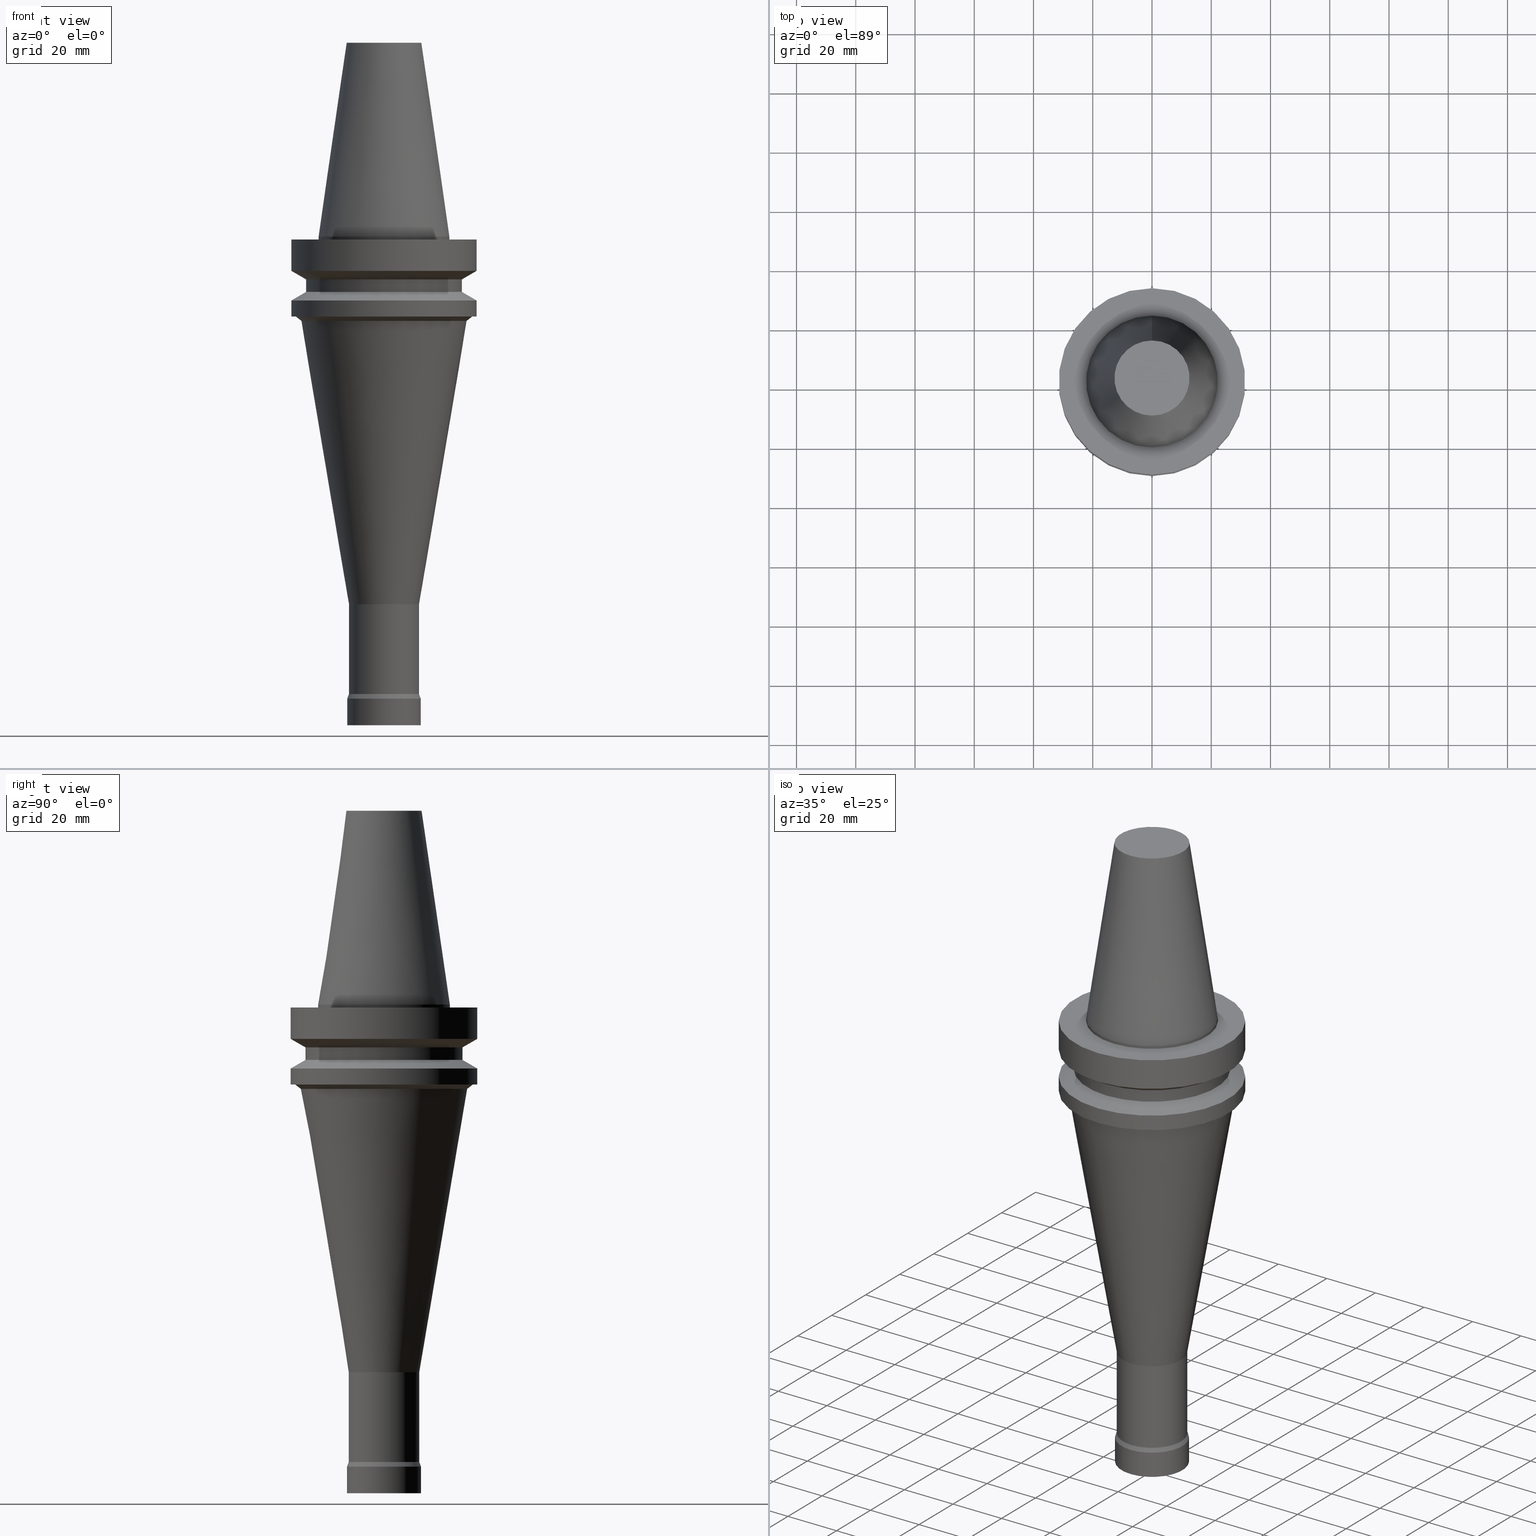
[diagram: canonical four-view strip — front | top / right | iso, engineering-drawing reading convention]
A machine part, canonical four-view strip (front | top / right | iso — engineering-drawing reading convention). The complete STEP part file that produces these views, byte-faithful:
ISO-10303-21;
HEADER;
FILE_DESCRIPTION((''),'1');
FILE_NAME('//Big_tech03/bigt/Translate/21_\X2\8F2A90ED7DDA\X0\-DXF/71_\X2\5207524A5DE55177\X0\/01_\X2\30A830F330C930DF30EB52A05DE5\X0\/01_\X2\30D530EB30AB30C330C830DF30EB\X0\ FCM/BBT/BBT40/BBT40-FCM25093-165.stp','2012-05-30T02:36:40',(''),(''),'Spatial Interop R18','Kubotek KeyCreator V8.5.1 (14335)',' ');
FILE_SCHEMA(('CONFIG_CONTROL_DESIGN'));
ENDSEC;
DATA;
#1=DESIGN_CONTEXT('',#27,'design');
#2=APPLICATION_PROTOCOL_DEFINITION('INTERNATIONAL STANDARD','config_control_design',1994,#27);
#3=PRODUCT_CATEGORY_RELATIONSHIP('NONE','NONE',#28,#29);
#4=DATE_AND_TIME(#30,#31);
#5=DATE_TIME_ROLE('creation_date');
#6=DATE_TIME_ROLE('classification_date');
#7=PERSON_AND_ORGANIZATION_ROLE('creator');
#8=PERSON_AND_ORGANIZATION_ROLE('design_supplier');
#9=PERSON_AND_ORGANIZATION_ROLE('classification_officer');
#10=PERSON_AND_ORGANIZATION_ROLE('design_owner');
#11=APPROVAL_PERSON_ORGANIZATION(#32,#33,#34);
#12=APPROVAL_DATE_TIME(#4,#33);
#13=CC_DESIGN_APPROVAL(#33,(#35,#36,#37));
#14=CC_DESIGN_DATE_AND_TIME_ASSIGNMENT(#4,#5,(#37));
#15=CC_DESIGN_DATE_AND_TIME_ASSIGNMENT(#4,#6,(#35));
#16=CC_DESIGN_PERSON_AND_ORGANIZATION_ASSIGNMENT(#32,#10,(#38));
#17=CC_DESIGN_PERSON_AND_ORGANIZATION_ASSIGNMENT(#32,#7,(#37));
#18=CC_DESIGN_PERSON_AND_ORGANIZATION_ASSIGNMENT(#32,#7,(#36));
#19=CC_DESIGN_PERSON_AND_ORGANIZATION_ASSIGNMENT(#32,#8,(#36));
#20=CC_DESIGN_SECURITY_CLASSIFICATION(#35,(#36));
#21=CC_DESIGN_PERSON_AND_ORGANIZATION_ASSIGNMENT(#32,#9,(#35));
#22=SHAPE_DEFINITION_REPRESENTATION(#39,#40);
#23= (GEOMETRIC_REPRESENTATION_CONTEXT(3)GLOBAL_UNCERTAINTY_ASSIGNED_CONTEXT((#43))GLOBAL_UNIT_ASSIGNED_CONTEXT((#45,#46,#47))REPRESENTATION_CONTEXT('NONE','WORKSPACE'));
#27=APPLICATION_CONTEXT('CONFIGURATION CONTROLLED 3D DESIGNS OF MECHANICAL PARTS AND ASSEMBLIES');
#28=PRODUCT_CATEGORY('part','NONE');
#29=PRODUCT_RELATED_PRODUCT_CATEGORY('detail',' ',(#38));
#30=CALENDAR_DATE(2012,30,4);
#31=LOCAL_TIME(11,36,40.0,#49);
#32=PERSON_AND_ORGANIZATION(#50,#51);
#33=APPROVAL(#52,'SOLID MODEL');
#34=APPROVAL_ROLE('APPROVED');
#35=SECURITY_CLASSIFICATION('','',#53);
#36=PRODUCT_DEFINITION_FORMATION_WITH_SPECIFIED_SOURCE(' ','NONE',#38,.NOT_KNOWN.);
#37=PRODUCT_DEFINITION('NONE','NONE',#36,#1);
#38=PRODUCT('1','1','PART-1-DESC',(#54));
#39=PRODUCT_DEFINITION_SHAPE('NONE','NONE',#37);
#40=ADVANCED_BREP_SHAPE_REPRESENTATION('1',(#55,#56),#23);
#43=UNCERTAINTY_MEASURE_WITH_UNIT(LENGTH_MEASURE(1.0E-006),#45,'','');
#45= (CONVERSION_BASED_UNIT('MILLIMETRE',#59)LENGTH_UNIT()NAMED_UNIT(#62));
#46= (NAMED_UNIT(#64)PLANE_ANGLE_UNIT()SI_UNIT($,.RADIAN.));
#47= (NAMED_UNIT(#64)SOLID_ANGLE_UNIT()SI_UNIT($,.STERADIAN.));
#49=COORDINATED_UNIVERSAL_TIME_OFFSET(9,0,.AHEAD.);
#50=PERSON('','UNSPECIFIED',$,$,$,$);
#51=ORGANIZATION('UNSPECIFIED','UNSPECIFIED','UNSPECIFIED');
#52=APPROVAL_STATUS('approved');
#53=SECURITY_CLASSIFICATION_LEVEL('unclassified');
#54=MECHANICAL_CONTEXT('',#27,'mechanical');
#55=MANIFOLD_SOLID_BREP('1',#70);
#56=AXIS2_PLACEMENT_3D('',#71,#72,#73);
#59=LENGTH_MEASURE_WITH_UNIT(LENGTH_MEASURE(1.0),#74);
#62=DIMENSIONAL_EXPONENTS(1.0,0.0,0.0,0.0,0.0,0.0,0.0);
#64=DIMENSIONAL_EXPONENTS(0.0,0.0,0.0,0.0,0.0,0.0,0.0);
#70=CLOSED_SHELL('',(#75,#76,#77,#78,#79,#80,#81,#82,#83,#84,#85,#86,#87,#88,#89,#90));
#71=CARTESIAN_POINT('',(0.0,0.0,0.0));
#72=DIRECTION('',(0.0,0.0,1.0));
#73=DIRECTION('',(1.0,0.0,0.0));
#74= (NAMED_UNIT(#62)LENGTH_UNIT()SI_UNIT(.MILLI.,.METRE.));
#75=ADVANCED_FACE('',(#92,#93),#94,.T.);
#76=ADVANCED_FACE('',(#95,#96),#97,.T.);
#77=ADVANCED_FACE('',(#98,#99),#100,.T.);
#78=ADVANCED_FACE('',(#101,#102),#103,.T.);
#79=ADVANCED_FACE('',(#104,#105),#106,.T.);
#80=ADVANCED_FACE('',(#107,#108),#109,.T.);
#81=ADVANCED_FACE('',(#110,#111),#112,.T.);
#82=ADVANCED_FACE('',(#113,#114),#115,.T.);
#83=ADVANCED_FACE('',(#116,#117),#118,.T.);
#84=ADVANCED_FACE('',(#119,#120),#121,.T.);
#85=ADVANCED_FACE('',(#122,#123),#124,.T.);
#86=ADVANCED_FACE('',(#125,#126),#127,.T.);
#87=ADVANCED_FACE('',(#128),#129,.T.);
#88=ADVANCED_FACE('',(#130,#131),#132,.T.);
#89=ADVANCED_FACE('',(#133),#134,.T.);
#90=ADVANCED_FACE('',(#135,#136),#137,.T.);
#92=FACE_OUTER_BOUND('',#138,.T.);
#93=FACE_BOUND('',#139,.T.);
#94=PLANE('',#140);
#95=FACE_BOUND('',#141,.T.);
#96=FACE_BOUND('',#142,.T.);
#97=CYLINDRICAL_SURFACE('',#143,31.5);
#98=FACE_BOUND('',#144,.T.);
#99=FACE_BOUND('',#145,.T.);
#100=CONICAL_SURFACE('',#146,29.0,1.04719755058882);
#101=FACE_BOUND('',#147,.T.);
#102=FACE_BOUND('',#148,.T.);
#103=CYLINDRICAL_SURFACE('',#149,26.5);
#104=FACE_BOUND('',#150,.T.);
#105=FACE_BOUND('',#151,.T.);
#106=CONICAL_SURFACE('',#152,29.0,1.04719755058882);
#107=FACE_BOUND('',#153,.T.);
#108=FACE_BOUND('',#154,.T.);
#109=CYLINDRICAL_SURFACE('',#155,31.5);
#110=FACE_BOUND('',#156,.T.);
#111=FACE_OUTER_BOUND('',#157,.T.);
#112=PLANE('',#158);
#113=FACE_BOUND('',#159,.T.);
#114=FACE_BOUND('',#160,.T.);
#115=CONICAL_SURFACE('',#161,29.0304878158435,0.909180241331828);
#116=FACE_BOUND('',#162,.T.);
#117=FACE_BOUND('',#163,.T.);
#118=CONICAL_SURFACE('',#164,19.9804878158435,0.167428981070461);
#119=FACE_BOUND('',#165,.T.);
#120=FACE_BOUND('',#166,.T.);
#121=CYLINDRICAL_SURFACE('',#167,11.9);
#122=FACE_BOUND('',#168,.T.);
#123=FACE_BOUND('',#169,.T.);
#124=CONICAL_SURFACE('',#170,12.2,0.369443269879194);
#125=FACE_BOUND('',#171,.T.);
#126=FACE_BOUND('',#172,.T.);
#127=CYLINDRICAL_SURFACE('',#173,12.5);
#128=FACE_OUTER_BOUND('',#174,.T.);
#129=PLANE('',#175);
#130=FACE_BOUND('',#176,.T.);
#131=FACE_BOUND('',#177,.T.);
#132=CYLINDRICAL_SURFACE('',#178,22.225);
#133=FACE_OUTER_BOUND('',#179,.T.);
#134=PLANE('',#180);
#135=FACE_BOUND('',#181,.T.);
#136=FACE_BOUND('',#182,.T.);
#137=CONICAL_SURFACE('',#183,17.4562500026599,0.144812498159292);
#138=EDGE_LOOP('',(#184));
#139=EDGE_LOOP('',(#185));
#140=AXIS2_PLACEMENT_3D('',#186,#187,#188);
#141=EDGE_LOOP('',(#189));
#142=EDGE_LOOP('',(#190));
#143=AXIS2_PLACEMENT_3D('',#191,#192,#193);
#144=EDGE_LOOP('',(#194));
#145=EDGE_LOOP('',(#195));
#146=AXIS2_PLACEMENT_3D('',#196,#197,#198);
#147=EDGE_LOOP('',(#199));
#148=EDGE_LOOP('',(#200));
#149=AXIS2_PLACEMENT_3D('',#201,#202,#203);
#150=EDGE_LOOP('',(#204));
#151=EDGE_LOOP('',(#205));
#152=AXIS2_PLACEMENT_3D('',#206,#207,#208);
#153=EDGE_LOOP('',(#209));
#154=EDGE_LOOP('',(#210));
#155=AXIS2_PLACEMENT_3D('',#211,#212,#213);
#156=EDGE_LOOP('',(#214));
#157=EDGE_LOOP('',(#215));
#158=AXIS2_PLACEMENT_3D('',#216,#217,#218);
#159=EDGE_LOOP('',(#219));
#160=EDGE_LOOP('',(#220));
#161=AXIS2_PLACEMENT_3D('',#221,#222,#223);
#162=EDGE_LOOP('',(#224));
#163=EDGE_LOOP('',(#225));
#164=AXIS2_PLACEMENT_3D('',#226,#227,#228);
#165=EDGE_LOOP('',(#229));
#166=EDGE_LOOP('',(#230));
#167=AXIS2_PLACEMENT_3D('',#231,#232,#233);
#168=EDGE_LOOP('',(#234));
#169=EDGE_LOOP('',(#235));
#170=AXIS2_PLACEMENT_3D('',#236,#237,#238);
#171=EDGE_LOOP('',(#239));
#172=EDGE_LOOP('',(#240));
#173=AXIS2_PLACEMENT_3D('',#241,#242,#243);
#174=EDGE_LOOP('',(#244));
#175=AXIS2_PLACEMENT_3D('',#245,#246,#247);
#176=EDGE_LOOP('',(#248));
#177=EDGE_LOOP('',(#249));
#178=AXIS2_PLACEMENT_3D('',#250,#251,#252);
#179=EDGE_LOOP('',(#253));
#180=AXIS2_PLACEMENT_3D('',#254,#255,#256);
#181=EDGE_LOOP('',(#257));
#182=EDGE_LOOP('',(#258));
#183=AXIS2_PLACEMENT_3D('',#259,#260,#261);
#184=ORIENTED_EDGE('',*,*,#262,.F.);
#185=ORIENTED_EDGE('',*,*,#263,.T.);
#186=CARTESIAN_POINT('',(6.12323399573673E-017,26.8625,-0.999999999999997));
#187=DIRECTION('',(-6.12323399573677E-017,-1.22464679914735E-016,1.0));
#188=DIRECTION('',(1.23259516440783E-032,-1.0,-1.22464679914735E-016));
#189=ORIENTED_EDGE('',*,*,#264,.F.);
#190=ORIENTED_EDGE('',*,*,#262,.T.);
#191=CARTESIAN_POINT('',(3.85763741731416E-016,7.71527483462832E-016,-6.3));
#192=DIRECTION('',(-6.12323399573677E-017,-1.22464679914735E-016,1.0));
#193=DIRECTION('',(-1.23259516440783E-032,1.0,1.22464679914735E-016));
#194=ORIENTED_EDGE('',*,*,#265,.F.);
#195=ORIENTED_EDGE('',*,*,#264,.T.);
#196=CARTESIAN_POINT('',(7.9867641352326E-016,1.59735282704652E-015,-13.043375675));
#197=DIRECTION('',(-6.12323399573677E-017,-1.22464679914735E-016,1.0));
#198=DIRECTION('',(-1.23259516440783E-032,1.0,1.22464679914735E-016));
#199=ORIENTED_EDGE('',*,*,#266,.F.);
#200=ORIENTED_EDGE('',*,*,#265,.T.);
#201=CARTESIAN_POINT('',(1.0164568432923E-015,2.03291368658461E-015,-16.6));
#202=DIRECTION('',(-6.12323399573677E-017,-1.22464679914735E-016,1.0));
#203=DIRECTION('',(-1.23259516440783E-032,1.0,1.22464679914735E-016));
#204=ORIENTED_EDGE('',*,*,#267,.F.);
#205=ORIENTED_EDGE('',*,*,#266,.T.);
#206=CARTESIAN_POINT('',(1.23423727306135E-015,2.46847454612269E-015,-20.156624325));
#207=DIRECTION('',(6.12323399573677E-017,1.22464679914735E-016,-1.0));
#208=DIRECTION('',(-1.23259516440783E-032,1.0,1.22464679914735E-016));
#209=ORIENTED_EDGE('',*,*,#268,.F.);
#210=ORIENTED_EDGE('',*,*,#267,.T.);
#211=CARTESIAN_POINT('',(1.48794586096403E-015,2.97589172192807E-015,-24.3));
#212=DIRECTION('',(-6.12323399573677E-017,-1.22464679914735E-016,1.0));
#213=DIRECTION('',(-1.23259516440783E-032,1.0,1.22464679914735E-016));
#214=ORIENTED_EDGE('',*,*,#269,.F.);
#215=ORIENTED_EDGE('',*,*,#268,.T.);
#216=CARTESIAN_POINT('',(1.65327317884893E-015,30.75,-27.0));
#217=DIRECTION('',(6.12323399573677E-017,1.22464679914735E-016,-1.0));
#218=DIRECTION('',(-1.23259516440783E-032,1.0,1.22464679914735E-016));
#219=ORIENTED_EDGE('',*,*,#270,.F.);
#220=ORIENTED_EDGE('',*,*,#269,.T.);
#221=CARTESIAN_POINT('',(1.69950095591381E-015,3.39900191182762E-015,-27.7549568920128));
#222=DIRECTION('',(-6.12323399573677E-017,-1.22464679914735E-016,1.0));
#223=DIRECTION('',(-1.23259516440783E-032,1.0,1.22464679914735E-016));
#224=ORIENTED_EDGE('',*,*,#271,.F.);
#225=ORIENTED_EDGE('',*,*,#270,.T.);
#226=CARTESIAN_POINT('',(4.67326936867179E-015,9.34653873734359E-015,-76.3202806217353));
#227=DIRECTION('',(-6.12323399573677E-017,-1.22464679914735E-016,1.0));
#228=DIRECTION('',(-1.23259516440783E-032,1.0,1.22464679914735E-016));
#229=ORIENTED_EDGE('',*,*,#272,.F.);
#230=ORIENTED_EDGE('',*,*,#271,.T.);
#231=CARTESIAN_POINT('',(8.5290879021664E-015,1.70581758043328E-014,-139.290575994723));
#232=DIRECTION('',(-6.12323399573677E-017,-1.22464679914735E-016,1.0));
#233=DIRECTION('',(-1.23259516440783E-032,1.0,1.22464679914735E-016));
#234=ORIENTED_EDGE('',*,*,#273,.F.);
#235=ORIENTED_EDGE('',*,*,#272,.T.);
#236=CARTESIAN_POINT('',(9.50480541665863E-015,1.90096108333173E-014,-155.225252265));
#237=DIRECTION('',(6.12323399573677E-017,1.22464679914735E-016,-1.0));
#238=DIRECTION('',(-1.23259516440783E-032,1.0,1.22464679914735E-016));
#239=ORIENTED_EDGE('',*,*,#274,.F.);
#240=ORIENTED_EDGE('',*,*,#273,.T.);
#241=CARTESIAN_POINT('',(9.82779056315751E-015,1.9655581126315E-014,-160.5));
#242=DIRECTION('',(-6.12323399573677E-017,-1.22464679914735E-016,1.0));
#243=DIRECTION('',(-1.23259516440783E-032,1.0,1.22464679914735E-016));
#244=ORIENTED_EDGE('',*,*,#274,.T.);
#245=CARTESIAN_POINT('',(1.01033360929657E-014,6.25000000000002,-165.0));
#246=DIRECTION('',(6.12323399573677E-017,1.22464679914735E-016,-1.0));
#247=DIRECTION('',(-1.23259516440783E-032,1.0,1.22464679914735E-016));
#248=ORIENTED_EDGE('',*,*,#263,.F.);
#249=ORIENTED_EDGE('',*,*,#275,.T.);
#250=CARTESIAN_POINT('',(3.06161699786838E-017,6.12323399573676E-017,-0.5));
#251=DIRECTION('',(-6.12323399573677E-017,-1.22464679914735E-016,1.0));
#252=DIRECTION('',(-1.23259516440783E-032,1.0,1.22464679914735E-016));
#253=ORIENTED_EDGE('',*,*,#276,.F.);
#254=CARTESIAN_POINT('',(-4.00459503321185E-015,6.34375000265984,65.4));
#255=DIRECTION('',(-6.12323399573677E-017,-1.22464679914735E-016,1.0));
#256=DIRECTION('',(1.23259516440783E-032,-1.0,-1.22464679914735E-016));
#257=ORIENTED_EDGE('',*,*,#275,.F.);
#258=ORIENTED_EDGE('',*,*,#276,.T.);
#259=CARTESIAN_POINT('',(-2.00229751660592E-015,-4.00459503321184E-015,32.7));
#260=DIRECTION('',(6.12323399573677E-017,1.22464679914735E-016,-1.0));
#261=DIRECTION('',(-1.23259516440783E-032,1.0,1.22464679914735E-016));
#262=EDGE_CURVE('',#277,#277,#278,.T.);
#263=EDGE_CURVE('',#279,#279,#280,.T.);
#264=EDGE_CURVE('',#281,#281,#282,.T.);
#265=EDGE_CURVE('',#283,#283,#284,.T.);
#266=EDGE_CURVE('',#285,#285,#286,.T.);
#267=EDGE_CURVE('',#287,#287,#288,.T.);
#268=EDGE_CURVE('',#289,#289,#290,.T.);
#269=EDGE_CURVE('',#291,#291,#292,.T.);
#270=EDGE_CURVE('',#293,#293,#294,.T.);
#271=EDGE_CURVE('',#295,#295,#296,.T.);
#272=EDGE_CURVE('',#297,#297,#298,.T.);
#273=EDGE_CURVE('',#299,#299,#300,.T.);
#274=EDGE_CURVE('',#301,#301,#302,.T.);
#275=EDGE_CURVE('',#303,#303,#304,.T.);
#276=EDGE_CURVE('',#305,#305,#306,.T.);
#277=VERTEX_POINT('',#307);
#278=CIRCLE('',#308,31.5);
#279=VERTEX_POINT('',#309);
#280=CIRCLE('',#310,22.225);
#281=VERTEX_POINT('',#311);
#282=CIRCLE('',#312,31.5);
#283=VERTEX_POINT('',#313);
#284=CIRCLE('',#314,26.5);
#285=VERTEX_POINT('',#315);
#286=CIRCLE('',#316,26.5);
#287=VERTEX_POINT('',#317);
#288=CIRCLE('',#318,31.5);
#289=VERTEX_POINT('',#319);
#290=CIRCLE('',#320,31.5);
#291=VERTEX_POINT('',#321);
#292=CIRCLE('',#322,30.0);
#293=VERTEX_POINT('',#323);
#294=CIRCLE('',#324,28.060975631687);
#295=VERTEX_POINT('',#325);
#296=CIRCLE('',#326,11.9);
#297=VERTEX_POINT('',#327);
#298=CIRCLE('',#328,11.9);
#299=VERTEX_POINT('',#329);
#300=CIRCLE('',#330,12.5);
#301=VERTEX_POINT('',#331);
#302=CIRCLE('',#332,12.5);
#303=VERTEX_POINT('',#333);
#304=CIRCLE('',#334,22.225);
#305=VERTEX_POINT('',#335);
#306=CIRCLE('',#336,12.6875000053197);
#307=CARTESIAN_POINT('',(6.12323399573673E-017,31.5,-0.999999999999996));
#308=AXIS2_PLACEMENT_3D('',#337,#338,#339);
#309=CARTESIAN_POINT('',(6.12323399573674E-017,22.225,-0.999999999999997));
#310=AXIS2_PLACEMENT_3D('',#340,#341,#342);
#311=CARTESIAN_POINT('',(7.10295143505464E-016,31.5,-11.6));
#312=AXIS2_PLACEMENT_3D('',#343,#344,#345);
#313=CARTESIAN_POINT('',(8.87057683541055E-016,26.5,-14.48675135));
#314=AXIS2_PLACEMENT_3D('',#346,#347,#348);
#315=CARTESIAN_POINT('',(1.14585600304355E-015,26.5,-18.71324865));
#316=AXIS2_PLACEMENT_3D('',#349,#350,#351);
#317=CARTESIAN_POINT('',(1.32261854307914E-015,31.5,-21.6));
#318=AXIS2_PLACEMENT_3D('',#352,#353,#354);
#319=CARTESIAN_POINT('',(1.65327317884893E-015,31.5,-27.0));
#320=AXIS2_PLACEMENT_3D('',#355,#356,#357);
#321=CARTESIAN_POINT('',(1.65327317884893E-015,30.0,-27.0));
#322=AXIS2_PLACEMENT_3D('',#358,#359,#360);
#323=CARTESIAN_POINT('',(1.7457287329787E-015,28.060975631687,-28.5099137840256));
#324=AXIS2_PLACEMENT_3D('',#361,#362,#363);
#325=CARTESIAN_POINT('',(7.60081000436489E-015,11.9,-124.130647459445));
#326=AXIS2_PLACEMENT_3D('',#364,#365,#366);
#327=CARTESIAN_POINT('',(9.45736579996791E-015,11.9,-154.45050453));
#328=AXIS2_PLACEMENT_3D('',#367,#368,#369);
#329=CARTESIAN_POINT('',(9.55224503334936E-015,12.5,-156.0));
#330=AXIS2_PLACEMENT_3D('',#370,#371,#372);
#331=CARTESIAN_POINT('',(1.01033360929657E-014,12.5,-165.0));
#332=AXIS2_PLACEMENT_3D('',#373,#374,#375);
#333=CARTESIAN_POINT('',(-2.67821041293904E-031,22.225,2.62177751110499E-015));
#334=AXIS2_PLACEMENT_3D('',#376,#377,#378);
#335=CARTESIAN_POINT('',(-4.00459503321185E-015,12.6875000053197,65.4));
#336=AXIS2_PLACEMENT_3D('',#379,#380,#381);
#337=CARTESIAN_POINT('',(6.12323399573677E-017,1.22464679914735E-016,-1.0));
#338=DIRECTION('',(6.12323399573677E-017,1.22464679914735E-016,-1.0));
#339=DIRECTION('',(-1.23259516440783E-032,1.0,1.22464679914735E-016));
#340=CARTESIAN_POINT('',(6.12323399573677E-017,1.22464679914735E-016,-1.0));
#341=DIRECTION('',(6.12323399573677E-017,1.22464679914735E-016,-1.0));
#342=DIRECTION('',(-1.23259516440783E-032,1.0,1.22464679914735E-016));
#343=CARTESIAN_POINT('',(7.10295143505465E-016,1.42059028701093E-015,-11.6));
#344=DIRECTION('',(6.12323399573677E-017,1.22464679914735E-016,-1.0));
#345=DIRECTION('',(-1.23259516440783E-032,1.0,1.22464679914735E-016));
#346=CARTESIAN_POINT('',(8.87057683541055E-016,1.77411536708211E-015,-14.48675135));
#347=DIRECTION('',(6.12323399573677E-017,1.22464679914735E-016,-1.0));
#348=DIRECTION('',(-1.23259516440783E-032,1.0,1.22464679914735E-016));
#349=CARTESIAN_POINT('',(1.14585600304355E-015,2.2917120060871E-015,-18.71324865));
#350=DIRECTION('',(6.12323399573677E-017,1.22464679914735E-016,-1.0));
#351=DIRECTION('',(-1.23259516440783E-032,1.0,1.22464679914735E-016));
#352=CARTESIAN_POINT('',(1.32261854307914E-015,2.64523708615828E-015,-21.6));
#353=DIRECTION('',(6.12323399573677E-017,1.22464679914735E-016,-1.0));
#354=DIRECTION('',(-1.23259516440783E-032,1.0,1.22464679914735E-016));
#355=CARTESIAN_POINT('',(1.65327317884893E-015,3.30654635769785E-015,-27.0));
#356=DIRECTION('',(6.12323399573677E-017,1.22464679914735E-016,-1.0));
#357=DIRECTION('',(-1.23259516440783E-032,1.0,1.22464679914735E-016));
#358=CARTESIAN_POINT('',(1.65327317884893E-015,3.30654635769785E-015,-27.0));
#359=DIRECTION('',(6.12323399573677E-017,1.22464679914735E-016,-1.0));
#360=DIRECTION('',(-1.23259516440783E-032,1.0,1.22464679914735E-016));
#361=CARTESIAN_POINT('',(1.7457287329787E-015,3.49145746595739E-015,-28.5099137840256));
#362=DIRECTION('',(6.12323399573677E-017,1.22464679914735E-016,-1.0));
#363=DIRECTION('',(-1.23259516440783E-032,1.0,1.22464679914735E-016));
#364=CARTESIAN_POINT('',(7.60081000436489E-015,1.52016200087298E-014,-124.130647459445));
#365=DIRECTION('',(6.12323399573677E-017,1.22464679914735E-016,-1.0));
#366=DIRECTION('',(-1.23259516440783E-032,1.0,1.22464679914735E-016));
#367=CARTESIAN_POINT('',(9.45736579996791E-015,1.89147315999358E-014,-154.45050453));
#368=DIRECTION('',(6.12323399573677E-017,1.22464679914735E-016,-1.0));
#369=DIRECTION('',(-1.23259516440783E-032,1.0,1.22464679914735E-016));
#370=CARTESIAN_POINT('',(9.55224503334936E-015,1.91044900666987E-014,-156.0));
#371=DIRECTION('',(6.12323399573677E-017,1.22464679914735E-016,-1.0));
#372=DIRECTION('',(-1.23259516440783E-032,1.0,1.22464679914735E-016));
#373=CARTESIAN_POINT('',(1.01033360929657E-014,2.02066721859313E-014,-165.0));
#374=DIRECTION('',(6.12323399573677E-017,1.22464679914735E-016,-1.0));
#375=DIRECTION('',(-1.23259516440783E-032,1.0,1.22464679914735E-016));
#376=CARTESIAN_POINT('',(5.94838594633015E-033,1.18967718926603E-032,-9.71445146547012E-017));
#377=DIRECTION('',(6.12323399573677E-017,1.22464679914735E-016,-1.0));
#378=DIRECTION('',(-1.23259516440783E-032,1.0,1.22464679914735E-016));
#379=CARTESIAN_POINT('',(-4.00459503321185E-015,-8.00919006642369E-015,65.4));
#380=DIRECTION('',(6.12323399573677E-017,1.22464679914735E-016,-1.0));
#381=DIRECTION('',(-1.23259516440783E-032,1.0,1.22464679914735E-016));
ENDSEC;
END-ISO-10303-21;
